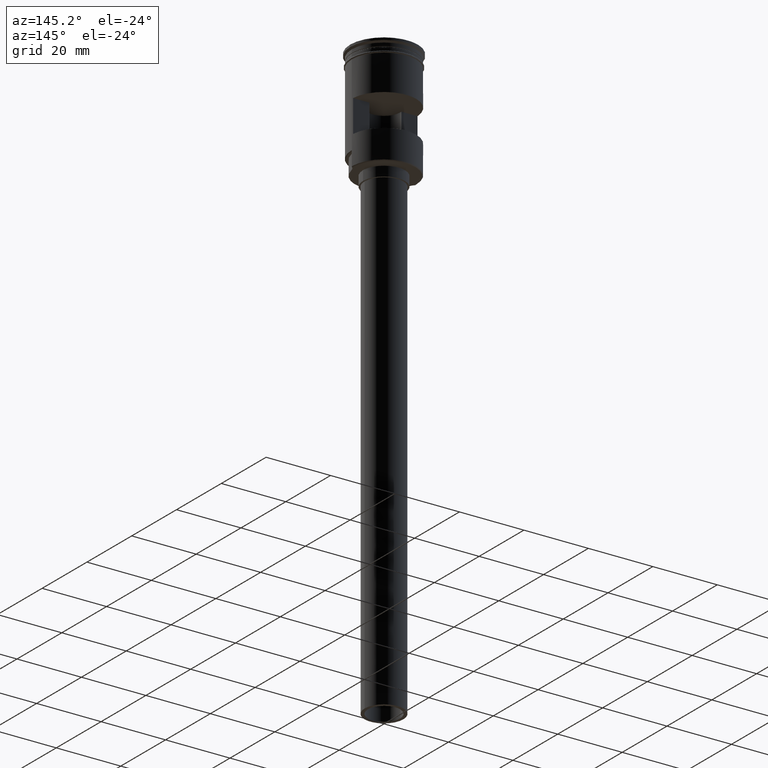
[diagram: clean part render]
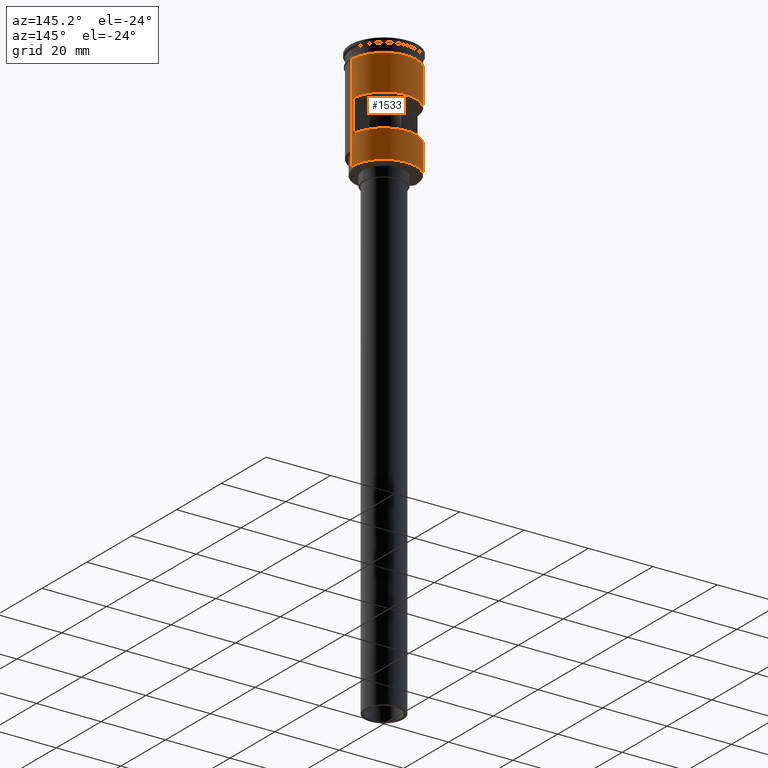
[diagram: same view with one face highlighted and labeled with its STEP entity id]
A machine part, auxiliary view. The second image highlights one B-rep face of the part: STEP entity #1533.
In plain terms, the highlighted cylindrical surface (partial cylindrical patch) has radius 10 mm, axis along (-0, -0, 1).
Its self-contained STEP definition (entity closure, byte-faithful):
#26 = ORIENTED_EDGE ( 'NONE', *, *, #1160, .F. ) ;
#27 = DIRECTION ( 'NONE',  ( 0.000000000000000000, -1.000000000000000000, -1.734723475976808080E-16 ) ) ;
#37 = VERTEX_POINT ( 'NONE', #414 ) ;
#89 = DIRECTION ( 'NONE',  ( -0.000000000000000000, -0.000000000000000000, 1.000000000000000000 ) ) ;
#93 = EDGE_CURVE ( 'NONE', #1201, #1192, #96, .T. ) ;
#96 = LINE ( 'NONE', #1089, #1317 ) ;
#121 = EDGE_CURVE ( 'NONE', #884, #1334, #832, .T. ) ;
#137 = CIRCLE ( 'NONE', #1043, 9.999999999999994671 ) ;
#141 = DIRECTION ( 'NONE',  ( -0.000000000000000000, -0.000000000000000000, 1.000000000000000000 ) ) ;
#159 = LINE ( 'NONE', #412, #1349 ) ;
#184 = CARTESIAN_POINT ( 'NONE',  ( 0.000000000000000000, 0.000000000000000000, 0.000000000000000000 ) ) ;
#200 = CARTESIAN_POINT ( 'NONE',  ( -9.981983770774217390, 0.5999999999999998668, 0.000000000000000000 ) ) ;
#213 = CIRCLE ( 'NONE', #502, 9.999999999999994671 ) ;
#270 = ORIENTED_EDGE ( 'NONE', *, *, #1007, .T. ) ;
#289 = DIRECTION ( 'NONE',  ( -0.000000000000000000, -0.000000000000000000, 1.000000000000000000 ) ) ;
#360 = ORIENTED_EDGE ( 'NONE', *, *, #730, .F. ) ;
#375 = EDGE_CURVE ( 'NONE', #1244, #884, #1223, .T. ) ;
#392 = LINE ( 'NONE', #1256, #912 ) ;
#402 = EDGE_LOOP ( 'NONE', ( #26, #596, #636, #1576 ) ) ;
#412 = CARTESIAN_POINT ( 'NONE',  ( -9.999999999999994671, 1.224646799147352665E-15, 0.000000000000000000 ) ) ;
#414 = CARTESIAN_POINT ( 'NONE',  ( 9.981983770774210285, 0.6000000000000000888, -15.00000000000000000 ) ) ;
#445 = LINE ( 'NONE', #1270, #1048 ) ;
#491 = DIRECTION ( 'NONE',  ( -1.000000000000000000, -8.881784197001250351E-16, 0.000000000000000000 ) ) ;
#498 = CARTESIAN_POINT ( 'NONE',  ( 0.000000000000000000, 0.000000000000000000, -25.00000000000000000 ) ) ;
#502 = AXIS2_PLACEMENT_3D ( 'NONE', #1265, #1410, #545 ) ;
#516 = EDGE_CURVE ( 'NONE', #1334, #37, #137, .T. ) ;
#517 = CARTESIAN_POINT ( 'NONE',  ( 9.999999999999998224, 0.000000000000000000, -3.999999999999996447 ) ) ;
#524 = DIRECTION ( 'NONE',  ( -0.000000000000000000, 1.845450506358306558E-16, -1.000000000000000000 ) ) ;
#545 = DIRECTION ( 'NONE',  ( -1.000000000000000000, 0.000000000000000000, 0.000000000000000000 ) ) ;
#556 = ORIENTED_EDGE ( 'NONE', *, *, #1554, .T. ) ;
#596 = ORIENTED_EDGE ( 'NONE', *, *, #516, .F. ) ;
#626 = EDGE_LOOP ( 'NONE', ( #270, #556, #1178, #360, #986, #1411 ) ) ;
#636 = ORIENTED_EDGE ( 'NONE', *, *, #121, .F. ) ;
#653 = DIRECTION ( 'NONE',  ( 0.000000000000000000, 0.000000000000000000, -1.000000000000000000 ) ) ;
#672 = FACE_OUTER_BOUND ( 'NONE', #626, .T. ) ;
#727 = VECTOR ( 'NONE', #89, 1000.000000000000000 ) ;
#730 = EDGE_CURVE ( 'NONE', #1192, #1425, #744, .T. ) ;
#744 = LINE ( 'NONE', #992, #970 ) ;
#757 = CARTESIAN_POINT ( 'NONE',  ( -9.999999999999991118, 0.000000000000000000, -29.29999999999997229 ) ) ;
#787 = DIRECTION ( 'NONE',  ( 1.000000000000000000, 0.000000000000000000, 0.000000000000000000 ) ) ;
#789 = FACE_BOUND ( 'NONE', #402, .T. ) ;
#799 = CARTESIAN_POINT ( 'NONE',  ( -9.981983770774217390, 0.5999999999999998668, -25.00000000000000000 ) ) ;
#814 = CARTESIAN_POINT ( 'NONE',  ( -9.981983770774217390, 0.6000000000000000888, -15.00000000000000000 ) ) ;
#828 = VERTEX_POINT ( 'NONE', #1417 ) ;
#832 = LINE ( 'NONE', #200, #727 ) ;
#842 = AXIS2_PLACEMENT_3D ( 'NONE', #184, #1165, #1520 ) ;
#866 = AXIS2_PLACEMENT_3D ( 'NONE', #498, #1604, #491 ) ;
#884 = VERTEX_POINT ( 'NONE', #799 ) ;
#912 = VECTOR ( 'NONE', #1014, 1000.000000000000000 ) ;
#931 = DIRECTION ( 'NONE',  ( -0.000000000000000000, -0.000000000000000000, 1.000000000000000000 ) ) ;
#936 = EDGE_CURVE ( 'NONE', #1201, #1215, #213, .T. ) ;
#950 = EDGE_CURVE ( 'NONE', #1425, #828, #1202, .T. ) ;
#970 = VECTOR ( 'NONE', #141, 1000.000000000000000 ) ;
#986 = ORIENTED_EDGE ( 'NONE', *, *, #93, .F. ) ;
#992 = CARTESIAN_POINT ( 'NONE',  ( 9.999999999999994671, 0.000000000000000000, 0.000000000000000000 ) ) ;
#1007 = EDGE_CURVE ( 'NONE', #1215, #1050, #392, .T. ) ;
#1012 = CYLINDRICAL_SURFACE ( 'NONE', #842, 9.999999999999994671 ) ;
#1014 = DIRECTION ( 'NONE',  ( -0.000000000000000000, -0.000000000000000000, 1.000000000000000000 ) ) ;
#1031 = CARTESIAN_POINT ( 'NONE',  ( 9.999999999999994671, 1.224646799147352665E-15, -29.29999999999997229 ) ) ;
#1043 = AXIS2_PLACEMENT_3D ( 'NONE', #1293, #524, #27 ) ;
#1048 = VECTOR ( 'NONE', #653, 1000.000000000000000 ) ;
#1050 = VERTEX_POINT ( 'NONE', #757 ) ;
#1089 = CARTESIAN_POINT ( 'NONE',  ( 9.999999999999991118, 1.224646799147352270E-15, -33.99999999999999289 ) ) ;
#1160 = EDGE_CURVE ( 'NONE', #37, #1244, #445, .T. ) ;
#1165 = DIRECTION ( 'NONE',  ( -0.000000000000000000, -0.000000000000000000, 1.000000000000000000 ) ) ;
#1168 = CARTESIAN_POINT ( 'NONE',  ( 0.000000000000000000, 0.000000000000000000, -3.999999999999996447 ) ) ;
#1178 = ORIENTED_EDGE ( 'NONE', *, *, #950, .F. ) ;
#1192 = VERTEX_POINT ( 'NONE', #1031 ) ;
#1201 = VERTEX_POINT ( 'NONE', #1398 ) ;
#1202 = CIRCLE ( 'NONE', #1405, 9.999999999999998224 ) ;
#1215 = VERTEX_POINT ( 'NONE', #1416 ) ;
#1223 = CIRCLE ( 'NONE', #866, 9.999999999999994671 ) ;
#1244 = VERTEX_POINT ( 'NONE', #1590 ) ;
#1256 = CARTESIAN_POINT ( 'NONE',  ( -9.999999999999991118, 0.000000000000000000, -33.99999999999999289 ) ) ;
#1265 = CARTESIAN_POINT ( 'NONE',  ( 0.000000000000000000, 0.000000000000000000, -33.79999999999998295 ) ) ;
#1270 = CARTESIAN_POINT ( 'NONE',  ( 9.981983770774217390, 0.5999999999999998668, 0.000000000000000000 ) ) ;
#1293 = CARTESIAN_POINT ( 'NONE',  ( 0.000000000000000000, 0.000000000000000000, -15.00000000000000000 ) ) ;
#1317 = VECTOR ( 'NONE', #931, 1000.000000000000000 ) ;
#1334 = VERTEX_POINT ( 'NONE', #814 ) ;
#1349 = VECTOR ( 'NONE', #1511, 1000.000000000000000 ) ;
#1398 = CARTESIAN_POINT ( 'NONE',  ( 9.999999999999991118, 1.224646799147352270E-15, -33.79999999999998295 ) ) ;
#1405 = AXIS2_PLACEMENT_3D ( 'NONE', #1168, #289, #787 ) ;
#1410 = DIRECTION ( 'NONE',  ( 0.000000000000000000, 0.000000000000000000, 1.000000000000000000 ) ) ;
#1411 = ORIENTED_EDGE ( 'NONE', *, *, #936, .T. ) ;
#1416 = CARTESIAN_POINT ( 'NONE',  ( -9.999999999999991118, 0.000000000000000000, -33.79999999999998295 ) ) ;
#1417 = CARTESIAN_POINT ( 'NONE',  ( -10.00000000000000000, 1.224646799147353256E-15, -3.999999999999996447 ) ) ;
#1425 = VERTEX_POINT ( 'NONE', #517 ) ;
#1511 = DIRECTION ( 'NONE',  ( -0.000000000000000000, -0.000000000000000000, 1.000000000000000000 ) ) ;
#1520 = DIRECTION ( 'NONE',  ( 1.000000000000000000, 0.000000000000000000, 0.000000000000000000 ) ) ;
#1533 = ADVANCED_FACE ( 'NONE', ( #789, #672 ), #1012, .T. ) ;
#1554 = EDGE_CURVE ( 'NONE', #1050, #828, #159, .T. ) ;
#1576 = ORIENTED_EDGE ( 'NONE', *, *, #375, .F. ) ;
#1590 = CARTESIAN_POINT ( 'NONE',  ( 9.981983770774210285, 0.6000000000000000888, -25.00000000000000000 ) ) ;
#1604 = DIRECTION ( 'NONE',  ( 0.000000000000000000, 0.000000000000000000, 1.000000000000000000 ) ) ;